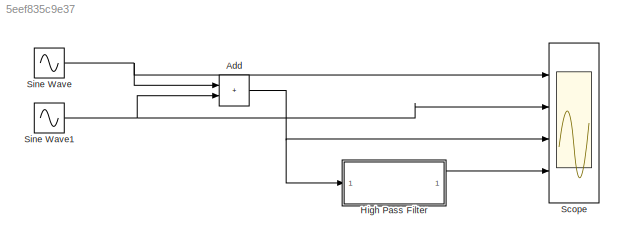
MODEL slx_5eef835c9e37
KIND model
CONFIG AbsTol = auto
CONFIG EnableMultiTasking = off
CONFIG FixedStep = 0.001
CONFIG MaxStep = 0.2
CONFIG MinStep = auto
CONFIG RelTol = 1e-3
CONFIG SampleTimeConstraint = Unconstrained
CONFIG Solver = FixedStepAuto
CONFIG SolverName = FixedStepAuto
CONFIG StartTime = 0.0
CONFIG StopTime = 10.0
WORKSPACE source: mxarray member
WORKSPACE C = 1
WORKSPACE R = 10
BLOCK [Sum] Add
  IconShape = rectangular
  Ports = [2, 1]
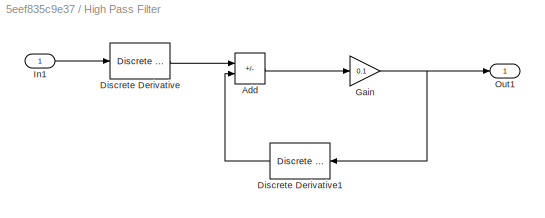
BLOCK [SubSystem] High Pass Filter
  Ports = [1, 1]
  RequestExecContextInheritance = off
BLOCK [Sum] High Pass Filter/Add
  IconShape = rectangular
  Inputs = +-
  Ports = [2, 1]
BLOCK [Reference] High Pass Filter/Discrete Derivative  REF=simulink/Discrete/Discrete Derivative
  Ports = [1, 1]
  SourceBlock = simulink/Discrete/Discrete Derivative
  SourceProductBaseCode = SL
  SourceType = Discrete Derivative
BLOCK [Reference] High Pass Filter/Discrete Derivative1  REF=simulink/Discrete/Discrete Derivative
  Ports = [1, 1]
  SourceBlock = simulink/Discrete/Discrete Derivative
  SourceProductBaseCode = SL
  SourceType = Discrete Derivative
BLOCK [Gain] High Pass Filter/Gain
  Gain = 0.1
BLOCK [Inport] High Pass Filter/In1
BLOCK [Outport] High Pass Filter/Out1
BLOCK [Scope] Scope
  Floating = off
  NumInputPorts = 4
  Ports = [4]
  ScopeSpecificationString = Simulink.scopes.TimeScopeBlockCfg('CurrentConfiguration', extmgr.ConfigurationSet(extmgr.Configuration('Core','General UI',true),extmgr.Configuration('Core','Source UI',true),extmgr.Configuration('Sources','WiredSimulink',true),extmgr.Configuration('Visuals','Time Domain',true,'SerializedDisplays',{struct('MinYLimReal','-62.5','MaxYLimReal','62.5','YLabelReal','','MinYLimMag','0.00000','MaxYLimMag...<+3448ch>
BLOCK [Sin] Sine Wave
  Amplitude = 50
  Ports = [0, 1]
  SampleTime = 0
BLOCK [Sin] Sine Wave1
  Amplitude = 5
  Frequency = 10
  Ports = [0, 1]
  SampleTime = 0
NET Add:1 -> High Pass Filter:1, Scope:3
LINE High Pass Filter/Add:1 -> High Pass Filter/Gain:1
LINE High Pass Filter/Discrete Derivative1:1 -> High Pass Filter/Add:2
LINE High Pass Filter/Discrete Derivative:1 -> High Pass Filter/Add:1
NET High Pass Filter/Gain:1 -> High Pass Filter/Discrete Derivative1:1, High Pass Filter/Out1:1
LINE High Pass Filter/In1:1 -> High Pass Filter/Discrete Derivative:1
LINE High Pass Filter:1 -> Scope:4
NET Sine Wave1:1 -> Add:2, Scope:2
NET Sine Wave:1 -> Add:1, Scope:1
note: NET lines group one-source signal fan-out (src -> all destinations, sorted); 1:1 wires keep LINE
